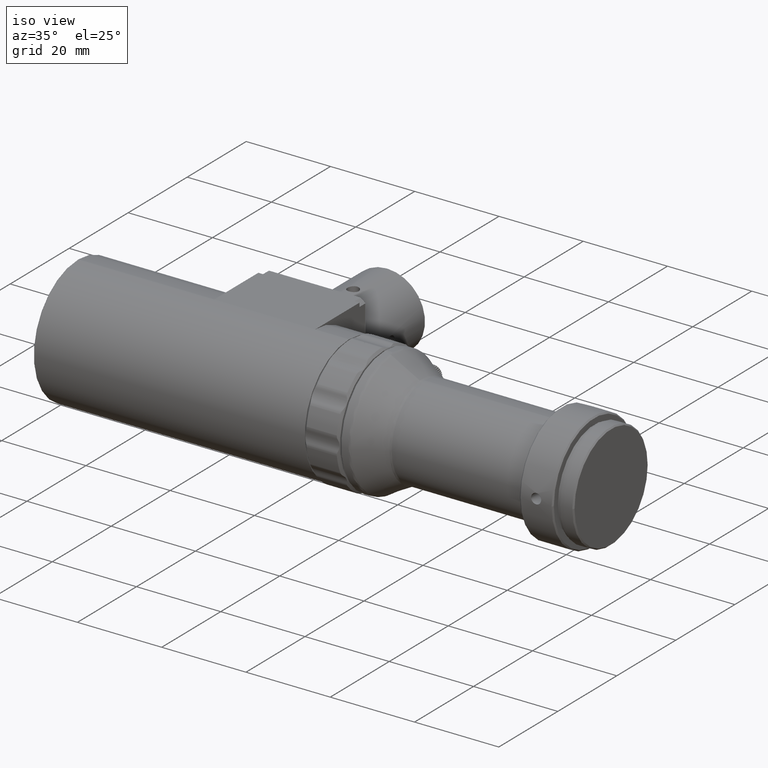
[diagram: clean part render]
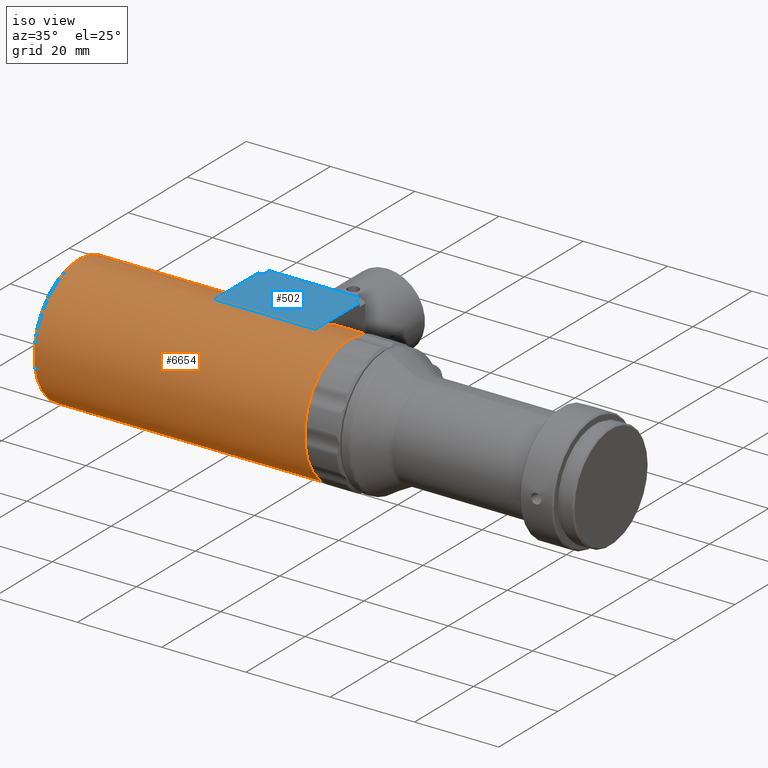
[diagram: same view with the hole feature highlighted: cylindrical wall and planar end face, labeled with their STEP entity ids]
A machine part, iso view. The highlighted faces form one hole feature of diameter 30 mm: the cylindrical wall (entity #6654, orange) and its adjacent planar end face (entity #502, blue) — they share a circular edge in the B-rep.
Wall:
#82 = EDGE_CURVE ( 'NONE', #6200, #1235, #4459, .T. ) ;
#185 = VECTOR ( 'NONE', #3502, 1000.000000000000000 ) ;
#244 = FACE_OUTER_BOUND ( 'NONE', #4004, .T. ) ;
#269 = EDGE_LOOP ( 'NONE', ( #6463 ) ) ;
#335 = CIRCLE ( 'NONE', #4499, 15.00000000000000000 ) ;
#513 = CARTESIAN_POINT ( 'NONE',  ( 0.4141775575868672510, 5.902121078259616600E-17, -3.784549713545249364E-15 ) ) ;
#651 = CYLINDRICAL_SURFACE ( 'NONE', #3590, 15.00000000000000000 ) ;
#660 = CIRCLE ( 'NONE', #3759, 15.00000000000000000 ) ;
#999 = ORIENTED_EDGE ( 'NONE', *, *, #1932, .T. ) ;
#1235 = VERTEX_POINT ( 'NONE', #2742 ) ;
#1237 = VERTEX_POINT ( 'NONE', #3374 ) ;
#1281 = DIRECTION ( 'NONE',  ( 0.000000000000000000, 0.000000000000000000, 1.000000000000000000 ) ) ;
#1293 = VERTEX_POINT ( 'NONE', #3571 ) ;
#1373 = DIRECTION ( 'NONE',  ( 0.000000000000000000, 0.000000000000000000, 1.000000000000000000 ) ) ;
#1408 = DIRECTION ( 'NONE',  ( -1.000000000000000000, -0.000000000000000000, -0.000000000000000000 ) ) ;
#1811 = FACE_OUTER_BOUND ( 'NONE', #269, .T. ) ;
#1889 = CARTESIAN_POINT ( 'NONE',  ( -31.58582244241313219, 5.902121078259616600E-17, -3.784549713545249364E-15 ) ) ;
#1903 = EDGE_CURVE ( 'NONE', #1235, #1237, #2279, .T. ) ;
#1932 = EDGE_CURVE ( 'NONE', #2451, #2451, #660, .T. ) ;
#2105 = AXIS2_PLACEMENT_3D ( 'NONE', #5705, #5397, #7092 ) ;
#2279 = LINE ( 'NONE', #4062, #185 ) ;
#2373 = FACE_BOUND ( 'NONE', #2630, .T. ) ;
#2451 = VERTEX_POINT ( 'NONE', #5814 ) ;
#2630 = EDGE_LOOP ( 'NONE', ( #4937, #4395, #3676, #2819 ) ) ;
#2742 = CARTESIAN_POINT ( 'NONE',  ( 0.4141775575868672510, 5.902121078259616600E-17, 14.99999999999999645 ) ) ;
#2774 = EDGE_CURVE ( 'NONE', #1293, #1293, #4593, .T. ) ;
#2819 = ORIENTED_EDGE ( 'NONE', *, *, #82, .T. ) ;
#2824 = DIRECTION ( 'NONE',  ( 0.000000000000000000, 0.000000000000000000, 1.000000000000000000 ) ) ;
#2929 = DIRECTION ( 'NONE',  ( 0.000000000000000000, 0.000000000000000000, 1.000000000000000000 ) ) ;
#3253 = CARTESIAN_POINT ( 'NONE',  ( 0.4141775575868672510, 9.775063101431110591E-16, -15.00000000000000355 ) ) ;
#3374 = CARTESIAN_POINT ( 'NONE',  ( -23.58582244241313219, 5.902121078259616600E-17, 14.99999999999999645 ) ) ;
#3502 = DIRECTION ( 'NONE',  ( -1.000000000000000000, -0.000000000000000000, -0.000000000000000000 ) ) ;
#3571 = CARTESIAN_POINT ( 'NONE',  ( -55.77582244241312281, -3.676331537307442818E-17, 14.99999999999999289 ) ) ;
#3590 = AXIS2_PLACEMENT_3D ( 'NONE', #1889, #6970, #2929 ) ;
#3676 = ORIENTED_EDGE ( 'NONE', *, *, #5678, .T. ) ;
#3759 = AXIS2_PLACEMENT_3D ( 'NONE', #4176, #1408, #1373 ) ;
#3783 = CARTESIAN_POINT ( 'NONE',  ( -23.58582244241313219, 9.775063101431110591E-16, -15.00000000000000355 ) ) ;
#3935 = VECTOR ( 'NONE', #6855, 1000.000000000000000 ) ;
#4004 = EDGE_LOOP ( 'NONE', ( #999 ) ) ;
#4062 = CARTESIAN_POINT ( 'NONE',  ( -31.58582244241313219, 5.902121078259616600E-17, 14.99999999999999645 ) ) ;
#4116 = DIRECTION ( 'NONE',  ( -1.000000000000000000, -0.000000000000000000, -0.000000000000000000 ) ) ;
#4176 = CARTESIAN_POINT ( 'NONE',  ( 8.414177557586867806, 5.902121078259616600E-17, -3.784549713545249364E-15 ) ) ;
#4395 = ORIENTED_EDGE ( 'NONE', *, *, #4735, .T. ) ;
#4459 = CIRCLE ( 'NONE', #6135, 15.00000000000000000 ) ;
#4499 = AXIS2_PLACEMENT_3D ( 'NONE', #6965, #4116, #1281 ) ;
#4593 = CIRCLE ( 'NONE', #2105, 15.00000000000000000 ) ;
#4735 = EDGE_CURVE ( 'NONE', #1237, #4854, #335, .T. ) ;
#4854 = VERTEX_POINT ( 'NONE', #3783 ) ;
#4937 = ORIENTED_EDGE ( 'NONE', *, *, #1903, .T. ) ;
#5397 = DIRECTION ( 'NONE',  ( 1.000000000000000000, 1.107696631857502250E-17, 1.388862982953933892E-16 ) ) ;
#5657 = CARTESIAN_POINT ( 'NONE',  ( -31.58582244241313219, 1.895991409503625854E-15, -15.00000000000000355 ) ) ;
#5678 = EDGE_CURVE ( 'NONE', #4854, #6200, #6749, .T. ) ;
#5705 = CARTESIAN_POINT ( 'NONE',  ( -55.77582244241312281, -3.676331537307442818E-17, -6.877181116249352992E-15 ) ) ;
#5734 = DIRECTION ( 'NONE',  ( 1.000000000000000000, 0.000000000000000000, 0.000000000000000000 ) ) ;
#5814 = CARTESIAN_POINT ( 'NONE',  ( 8.414177557586867806, 5.902121078259616600E-17, 14.99999999999999645 ) ) ;
#6135 = AXIS2_PLACEMENT_3D ( 'NONE', #513, #5734, #2824 ) ;
#6200 = VERTEX_POINT ( 'NONE', #3253 ) ;
#6463 = ORIENTED_EDGE ( 'NONE', *, *, #2774, .T. ) ;
#6654 = ADVANCED_FACE ( '��������1_Z', ( #1811, #244, #2373 ), #651, .T. ) ;
#6749 = LINE ( 'NONE', #5657, #3935 ) ;
#6855 = DIRECTION ( 'NONE',  ( 1.000000000000000000, 0.000000000000000000, 0.000000000000000000 ) ) ;
#6965 = CARTESIAN_POINT ( 'NONE',  ( -23.58582244241313219, 5.902121078259616600E-17, -3.784549713545249364E-15 ) ) ;
#6970 = DIRECTION ( 'NONE',  ( -1.000000000000000000, -0.000000000000000000, -0.000000000000000000 ) ) ;
#7092 = DIRECTION ( 'NONE',  ( 0.000000000000000000, 0.000000000000000000, 1.000000000000000000 ) ) ;
End face:
#185 = VECTOR ( 'NONE', #3502, 1000.000000000000000 ) ;
#190 = CARTESIAN_POINT ( 'NONE',  ( -31.58582244241313219, 15.00000000000000000, 14.99999999999999645 ) ) ;
#242 = VERTEX_POINT ( 'NONE', #5152 ) ;
#289 = LINE ( 'NONE', #5927, #788 ) ;
#318 = CARTESIAN_POINT ( 'NONE',  ( -23.58582244241313219, 16.99999999999999645, 14.99999999999999822 ) ) ;
#394 = CARTESIAN_POINT ( 'NONE',  ( 0.4141775575868672510, 5.902121078259616600E-17, 14.99999999999999645 ) ) ;
#422 = CARTESIAN_POINT ( 'NONE',  ( -0.7576185285592751395, 15.00000000000000000, 14.99999999999999645 ) ) ;
#442 = CARTESIAN_POINT ( 'NONE',  ( -0.7576185285592760277, 16.99999999999999645, 14.99999999999999822 ) ) ;
#502 = ADVANCED_FACE ( 'NONE', ( #4501 ), #6680, .F. ) ;
#544 = EDGE_LOOP ( 'NONE', ( #1618, #5798, #7307, #2791, #919, #6423, #1721, #2743 ) ) ;
#777 = AXIS2_PLACEMENT_3D ( 'NONE', #2759, #3874, #2722 ) ;
#788 = VECTOR ( 'NONE', #4237, 1000.000000000000000 ) ;
#919 = ORIENTED_EDGE ( 'NONE', *, *, #7238, .F. ) ;
#1038 = EDGE_CURVE ( 'NONE', #1237, #6417, #4601, .T. ) ;
#1116 = CARTESIAN_POINT ( 'NONE',  ( -0.7576185285592742513, 16.99999999999999645, 14.99999999999999822 ) ) ;
#1235 = VERTEX_POINT ( 'NONE', #2742 ) ;
#1237 = VERTEX_POINT ( 'NONE', #3374 ) ;
#1566 = LINE ( 'NONE', #1116, #3344 ) ;
#1618 = ORIENTED_EDGE ( 'NONE', *, *, #2868, .F. ) ;
#1721 = ORIENTED_EDGE ( 'NONE', *, *, #1903, .F. ) ;
#1903 = EDGE_CURVE ( 'NONE', #1235, #1237, #2279, .T. ) ;
#2279 = LINE ( 'NONE', #4062, #185 ) ;
#2722 = DIRECTION ( 'NONE',  ( -1.000000000000000000, 0.000000000000000000, -0.000000000000000000 ) ) ;
#2742 = CARTESIAN_POINT ( 'NONE',  ( 0.4141775575868672510, 5.902121078259616600E-17, 14.99999999999999645 ) ) ;
#2743 = ORIENTED_EDGE ( 'NONE', *, *, #5755, .F. ) ;
#2759 = CARTESIAN_POINT ( 'NONE',  ( -31.58582244241313219, 5.902121078259616600E-17, 14.99999999999999645 ) ) ;
#2791 = ORIENTED_EDGE ( 'NONE', *, *, #6274, .F. ) ;
#2868 = EDGE_CURVE ( 'NONE', #7116, #7037, #289, .T. ) ;
#2979 = VERTEX_POINT ( 'NONE', #5550 ) ;
#2990 = LINE ( 'NONE', #190, #4534 ) ;
#3000 = VERTEX_POINT ( 'NONE', #442 ) ;
#3274 = VECTOR ( 'NONE', #6890, 1000.000000000000000 ) ;
#3344 = VECTOR ( 'NONE', #4970, 1000.000000000000000 ) ;
#3374 = CARTESIAN_POINT ( 'NONE',  ( -23.58582244241313219, 5.902121078259616600E-17, 14.99999999999999645 ) ) ;
#3502 = DIRECTION ( 'NONE',  ( -1.000000000000000000, -0.000000000000000000, -0.000000000000000000 ) ) ;
#3522 = CARTESIAN_POINT ( 'NONE',  ( -23.58582244241313219, 5.902121078259616600E-17, 14.99999999999999645 ) ) ;
#3874 = DIRECTION ( 'NONE',  ( 0.000000000000000000, 0.000000000000000000, -1.000000000000000000 ) ) ;
#3924 = DIRECTION ( 'NONE',  ( 0.000000000000000000, 1.000000000000000000, -1.665334536937734811E-16 ) ) ;
#4060 = VECTOR ( 'NONE', #5539, 1000.000000000000000 ) ;
#4062 = CARTESIAN_POINT ( 'NONE',  ( -31.58582244241313219, 5.902121078259616600E-17, 14.99999999999999645 ) ) ;
#4237 = DIRECTION ( 'NONE',  ( 1.000000000000000000, -0.000000000000000000, 0.000000000000000000 ) ) ;
#4381 = LINE ( 'NONE', #318, #4060 ) ;
#4501 = FACE_OUTER_BOUND ( 'NONE', #544, .T. ) ;
#4534 = VECTOR ( 'NONE', #4743, 1000.000000000000000 ) ;
#4601 = LINE ( 'NONE', #3522, #3274 ) ;
#4743 = DIRECTION ( 'NONE',  ( 1.000000000000000000, -0.000000000000000000, 0.000000000000000000 ) ) ;
#4879 = VECTOR ( 'NONE', #5913, 1000.000000000000000 ) ;
#4970 = DIRECTION ( 'NONE',  ( -0.000000000000000000, -1.000000000000000000, 1.665334536937734811E-16 ) ) ;
#5152 = CARTESIAN_POINT ( 'NONE',  ( -22.41402635626698370, 16.99999999999999645, 14.99999999999999822 ) ) ;
#5489 = VECTOR ( 'NONE', #3924, 1000.000000000000000 ) ;
#5498 = CARTESIAN_POINT ( 'NONE',  ( 0.4141775575868672510, 15.00000000000000000, 14.99999999999999467 ) ) ;
#5539 = DIRECTION ( 'NONE',  ( 1.000000000000000000, 9.757252206311140976E-49, 5.859034320067041051E-33 ) ) ;
#5550 = CARTESIAN_POINT ( 'NONE',  ( -22.41402635626698370, 15.00000000000000000, 14.99999999999999645 ) ) ;
#5755 = EDGE_CURVE ( 'NONE', #7037, #1235, #6557, .T. ) ;
#5798 = ORIENTED_EDGE ( 'NONE', *, *, #6308, .F. ) ;
#5913 = DIRECTION ( 'NONE',  ( -0.000000000000000000, -1.000000000000000000, -0.000000000000000000 ) ) ;
#5927 = CARTESIAN_POINT ( 'NONE',  ( -31.58582244241313219, 15.00000000000000000, 14.99999999999999645 ) ) ;
#6203 = LINE ( 'NONE', #6696, #5489 ) ;
#6274 = EDGE_CURVE ( 'NONE', #2979, #242, #6203, .T. ) ;
#6308 = EDGE_CURVE ( 'NONE', #3000, #7116, #1566, .T. ) ;
#6417 = VERTEX_POINT ( 'NONE', #7091 ) ;
#6423 = ORIENTED_EDGE ( 'NONE', *, *, #1038, .F. ) ;
#6557 = LINE ( 'NONE', #394, #4879 ) ;
#6680 = PLANE ( 'NONE',  #777 ) ;
#6696 = CARTESIAN_POINT ( 'NONE',  ( -22.41402635626698370, 16.99999999999999645, 14.99999999999999822 ) ) ;
#6775 = EDGE_CURVE ( 'NONE', #242, #3000, #4381, .T. ) ;
#6890 = DIRECTION ( 'NONE',  ( 0.000000000000000000, 1.000000000000000000, 0.000000000000000000 ) ) ;
#7037 = VERTEX_POINT ( 'NONE', #5498 ) ;
#7091 = CARTESIAN_POINT ( 'NONE',  ( -23.58582244241312864, 15.00000000000000000, 14.99999999999999467 ) ) ;
#7116 = VERTEX_POINT ( 'NONE', #422 ) ;
#7238 = EDGE_CURVE ( 'NONE', #6417, #2979, #2990, .T. ) ;
#7307 = ORIENTED_EDGE ( 'NONE', *, *, #6775, .F. ) ;